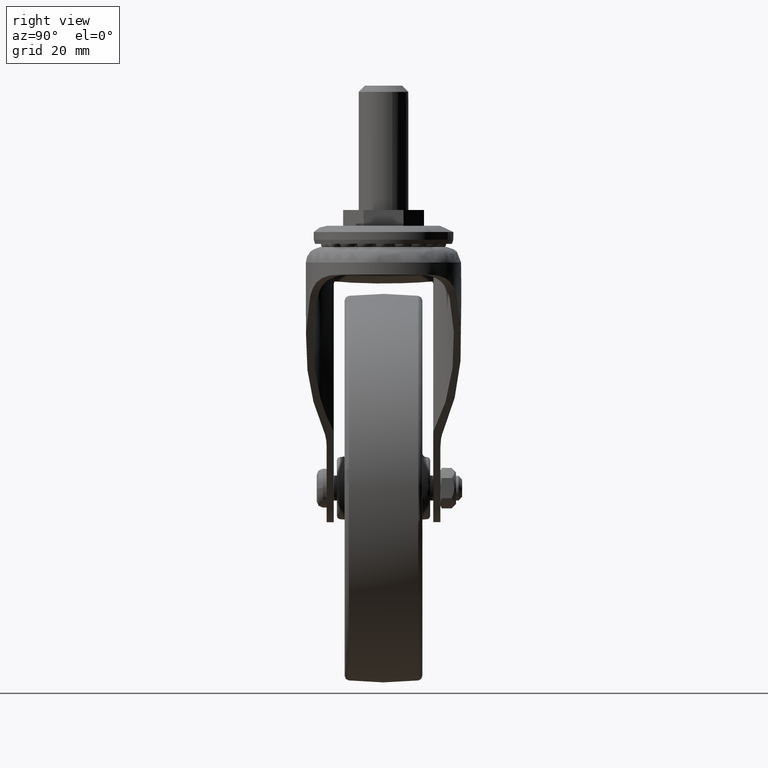
[diagram: clean part render]
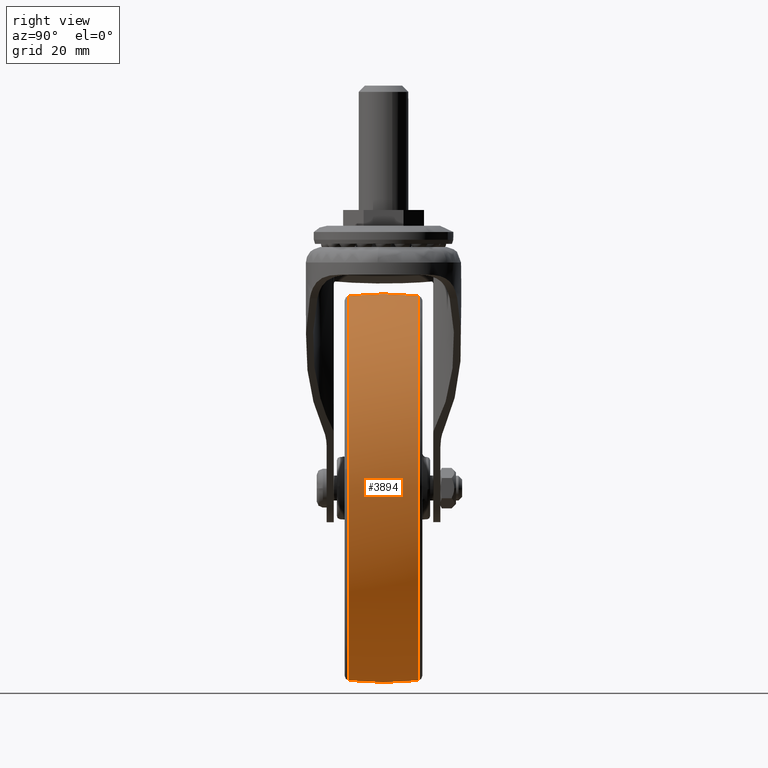
[diagram: same view with one face highlighted and labeled with its STEP entity id]
A machine part, right view. The second image highlights one B-rep face of the part: STEP entity #3894.
In plain terms, the highlighted face is a freeform B-spline surface patch.
Its self-contained STEP definition (entity closure, byte-faithful):
#2863=CARTESIAN_POINT('',(16.859412540729789,-11.167512254806500,-59.533276336664599));
#2864=VERTEX_POINT('',#2863);
#2878=CARTESIAN_POINT('',(61.562073801667132,-11.167497079689721,6.209828615817592));
#2879=VERTEX_POINT('',#2878);
#2880=CARTESIAN_POINT('',(16.859412540729789,-11.167512254806509,-59.533276336664606));
#2881=CARTESIAN_POINT('',(61.874476883661288,-11.167509386006888,-46.785321644097181));
#2882=CARTESIAN_POINT('',(61.874476883661302,-11.167498528446149,0.000001613669779));
#2883=CARTESIAN_POINT('',(61.874476883661302,-11.167497806059195,3.112773279797085));
#2884=CARTESIAN_POINT('',(61.562073801667118,-11.167497079689724,6.209828615817592));
#2892=(BOUNDED_CURVE()B_SPLINE_CURVE(2,(#2880,#2881,#2882,#2883,#2884),.UNSPECIFIED.,.F.,.U.)B_SPLINE_CURVE_WITH_KNOTS((3,2,3),(0.046426116413220,0.250000000000000,0.267423436226766),.UNSPECIFIED.)CURVE()GEOMETRIC_REPRESENTATION_ITEM()RATIONAL_B_SPLINE_CURVE((0.911418360728230,0.761498359879652,1.0,0.979587174723006,0.962019641921388))REPRESENTATION_ITEM(''));
#2893=EDGE_CURVE('',#2864,#2879,#2892,.T.);
#2992=CARTESIAN_POINT('',(0.0,-11.167484169115880,61.874480111000857));
#2993=VERTEX_POINT('',#2992);
#2994=CARTESIAN_POINT('',(61.562073801667125,-11.167497079689726,6.209828615817592));
#2995=CARTESIAN_POINT('',(55.947125964351045,-11.167484169115875,61.874480111000857));
#2996=CARTESIAN_POINT('',(0.0,-11.167484169115880,61.874480111000857));
#3004=(BOUNDED_CURVE()B_SPLINE_CURVE(2,(#2994,#2995,#2996),.UNSPECIFIED.,.F.,.U.)B_SPLINE_CURVE_WITH_KNOTS((3,3),(0.267423436226766,0.500000000000000),.UNSPECIFIED.)CURVE()GEOMETRIC_REPRESENTATION_ITEM()RATIONAL_B_SPLINE_CURVE((0.962019641921387,0.727519606463541,1.0))REPRESENTATION_ITEM(''));
#3005=EDGE_CURVE('',#2879,#2993,#3004,.T.);
#3007=CARTESIAN_POINT('',(-61.460645238487857,-11.167500525878991,7.144238826185015));
#3008=VERTEX_POINT('',#3007);
#3022=CARTESIAN_POINT('',(0.0,-11.167512887776420,-61.874476883661302));
#3023=VERTEX_POINT('',#3022);
#3024=CARTESIAN_POINT('',(-61.460645238487849,-11.167500525878992,7.144238826185015));
#3025=CARTESIAN_POINT('',(-61.874478227965348,-11.167500844705600,3.584105215042377));
#3026=CARTESIAN_POINT('',(-61.874478187999912,-11.167501202739651,0.000000151617456));
#3027=CARTESIAN_POINT('',(-61.874477498053423,-11.167507383688367,-61.874476812243827));
#3028=CARTESIAN_POINT('',(0.0,-11.167512887776420,-61.874476883661302));
#3036=(BOUNDED_CURVE()B_SPLINE_CURVE(2,(#3024,#3025,#3026,#3027,#3028),.UNSPECIFIED.,.F.,.U.)B_SPLINE_CURVE_WITH_KNOTS((3,2,3),(0.730000137950048,0.750000000000000,1.0),.UNSPECIFIED.)CURVE()GEOMETRIC_REPRESENTATION_ITEM()RATIONAL_B_SPLINE_CURVE((0.956886389709976,0.976568704113458,1.0,0.707106781186548,1.0))REPRESENTATION_ITEM(''));
#3037=EDGE_CURVE('',#3008,#3023,#3036,.T.);
#3039=CARTESIAN_POINT('',(0.0,-11.167512887776420,-61.874476883661302));
#3040=CARTESIAN_POINT('',(8.592262934260161,-11.167512887776418,-61.874476883661309));
#3041=CARTESIAN_POINT('',(16.859412540729789,-11.167512254806509,-59.533276336664606));
#3049=(BOUNDED_CURVE()B_SPLINE_CURVE(2,(#3039,#3040,#3041),.UNSPECIFIED.,.F.,.U.)B_SPLINE_CURVE_WITH_KNOTS((3,3),(0.0,0.046426116413220),.UNSPECIFIED.)CURVE()GEOMETRIC_REPRESENTATION_ITEM()RATIONAL_B_SPLINE_CURVE((1.0,0.945608421306896,0.911418360728230))REPRESENTATION_ITEM(''));
#3050=EDGE_CURVE('',#3023,#2864,#3049,.T.);
#3085=CARTESIAN_POINT('',(60.979178450908996,11.167510254334079,-10.487635164903971));
#3086=VERTEX_POINT('',#3085);
#3087=CARTESIAN_POINT('',(0.0,11.167508562899661,61.874476493552521));
#3088=VERTEX_POINT('',#3087);
#3089=CARTESIAN_POINT('',(60.979178450909004,11.167510254334085,-10.487635164903967));
#3090=CARTESIAN_POINT('',(61.874475294835513,11.167510120700552,-5.282031636926890));
#3091=CARTESIAN_POINT('',(61.874475294835499,11.167509998175500,0.000000599358513));
#3092=CARTESIAN_POINT('',(61.874475294835506,11.167508562899664,61.874476493552514));
#3093=CARTESIAN_POINT('',(0.0,11.167508562899661,61.874476493552521));
#3101=(BOUNDED_CURVE()B_SPLINE_CURVE(2,(#3089,#3090,#3091,#3092,#3093),.UNSPECIFIED.,.F.,.U.)B_SPLINE_CURVE_WITH_KNOTS((3,2,3),(0.220849025038311,0.250000000000000,0.500000000000000),.UNSPECIFIED.)CURVE()GEOMETRIC_REPRESENTATION_ITEM()RATIONAL_B_SPLINE_CURVE((0.939659644304331,0.965847508447682,1.0,0.707106781186548,1.0))REPRESENTATION_ITEM(''));
#3102=EDGE_CURVE('',#3086,#3088,#3101,.T.);
#3151=CARTESIAN_POINT('',(-61.479177486551421,11.167524272468970,6.982929484320373));
#3152=VERTEX_POINT('',#3151);
#3166=CARTESIAN_POINT('',(-61.460641722616238,11.167524335401341,7.144238311373103));
#3167=VERTEX_POINT('',#3166);
#3168=CARTESIAN_POINT('',(-61.460641722616238,11.167524335401342,7.144238311373103));
#3169=CARTESIAN_POINT('',(-61.470015645550333,11.167524327863955,7.063596082889473));
#3170=CARTESIAN_POINT('',(-61.479177486551428,11.167524272468970,6.982929484320373));
#3178=(BOUNDED_CURVE()B_SPLINE_CURVE(2,(#3168,#3169,#3170),.UNSPECIFIED.,.F.,.U.)B_SPLINE_CURVE_WITH_KNOTS((3,3),(0.730000138238234,0.730444236552219),.UNSPECIFIED.)CURVE()GEOMETRIC_REPRESENTATION_ITEM()RATIONAL_B_SPLINE_CURVE((0.956886390277197,0.957323437425026,0.957762333064721))REPRESENTATION_ITEM(''));
#3179=EDGE_CURVE('',#3167,#3152,#3178,.T.);
#3220=CARTESIAN_POINT('',(0.0,11.167511433451340,-61.874475294835499));
#3221=VERTEX_POINT('',#3220);
#3222=CARTESIAN_POINT('',(0.0,11.167511433451340,-61.874475294835499));
#3223=CARTESIAN_POINT('',(52.141301780942385,11.167511433451340,-61.874475294835484));
#3224=CARTESIAN_POINT('',(60.979178450909004,11.167510254334085,-10.487635164903967));
#3232=(BOUNDED_CURVE()B_SPLINE_CURVE(2,(#3222,#3223,#3224),.UNSPECIFIED.,.F.,.U.)B_SPLINE_CURVE_WITH_KNOTS((3,3),(0.0,0.220849025038311),.UNSPECIFIED.)CURVE()GEOMETRIC_REPRESENTATION_ITEM()RATIONAL_B_SPLINE_CURVE((1.0,0.741259272738865,0.939659644304331))REPRESENTATION_ITEM(''));
#3233=EDGE_CURVE('',#3221,#3086,#3232,.T.);
#3235=CARTESIAN_POINT('',(-61.479177486551421,11.167524272468967,6.982929484320373));
#3236=CARTESIAN_POINT('',(-61.874474739959460,11.167523994154148,3.502653417896604));
#3237=CARTESIAN_POINT('',(-61.874474756091637,11.167523628970770,-0.000000062624058));
#3238=CARTESIAN_POINT('',(-61.874475041067043,11.167517177995768,-61.874475324333758));
#3239=CARTESIAN_POINT('',(0.0,11.167511433451340,-61.874475294835499));
#3247=(BOUNDED_CURVE()B_SPLINE_CURVE(2,(#3235,#3236,#3237,#3238,#3239),.UNSPECIFIED.,.F.,.U.)B_SPLINE_CURVE_WITH_KNOTS((3,2,3),(0.730444236552219,0.750000000000000,1.0),.UNSPECIFIED.)CURVE()GEOMETRIC_REPRESENTATION_ITEM()RATIONAL_B_SPLINE_CURVE((0.957762333064719,0.977088997989699,1.0,0.707106781186548,1.0))REPRESENTATION_ITEM(''));
#3248=EDGE_CURVE('',#3152,#3221,#3247,.T.);
#3801=CARTESIAN_POINT('',(-61.328220287195165,-12.295962952238243,7.128894792006973));
#3802=CARTESIAN_POINT('',(-62.081977602067745,-6.171396763216775,7.216512801648682));
#3803=CARTESIAN_POINT('',(-62.081977602067745,0.0,7.216512801648682));
#3804=CARTESIAN_POINT('',(-62.081977602067745,6.171403680964750,7.216512801648682));
#3805=CARTESIAN_POINT('',(-61.328218603776563,12.295976630649973,7.128894596323582));
#3806=CARTESIAN_POINT('',(-61.741167340359226,-12.295962952238240,3.576407543662565));
#3807=CARTESIAN_POINT('',(-62.500000000000000,-6.171396763216771,3.620363545228846));
#3808=CARTESIAN_POINT('',(-62.499999999999993,0.0,3.620363545228846));
#3809=CARTESIAN_POINT('',(-62.500000000000000,6.171403680964750,3.620363545228846));
#3810=CARTESIAN_POINT('',(-61.741165645605506,12.295976630649969,3.576407445492572));
#3811=CARTESIAN_POINT('',(-61.741167340359240,-12.295962952238238,0.0));
#3812=CARTESIAN_POINT('',(-62.500000000000000,-6.171396763216773,0.0));
#3813=CARTESIAN_POINT('',(-62.500000000000000,0.0,0.0));
#3814=CARTESIAN_POINT('',(-62.500000000000014,6.171403680964750,0.0));
#3815=CARTESIAN_POINT('',(-61.741165645605506,12.295976630649978,0.0));
#3816=CARTESIAN_POINT('',(-61.741167340359233,-12.295962952238241,-61.741167340359233));
#3817=CARTESIAN_POINT('',(-62.500000000000007,-6.171396763216773,-62.500000000000007));
#3818=CARTESIAN_POINT('',(-62.500000000000000,0.0,-62.500000000000000));
#3819=CARTESIAN_POINT('',(-62.500000000000000,6.171403680964750,-62.500000000000000));
#3820=CARTESIAN_POINT('',(-61.741165645605513,12.295976630649974,-61.741165645605513));
#3821=CARTESIAN_POINT('',(0.0,-12.295962952238238,-61.741167340359240));
#3822=CARTESIAN_POINT('',(0.0,-6.171396763216773,-62.500000000000000));
#3823=CARTESIAN_POINT('',(0.0,0.0,-62.500000000000000));
#3824=CARTESIAN_POINT('',(0.0,6.171403680964750,-62.500000000000014));
#3825=CARTESIAN_POINT('',(0.0,12.295976630649978,-61.741165645605506));
#3826=CARTESIAN_POINT('',(61.741167340359233,-12.295962952238241,-61.741167340359233));
#3827=CARTESIAN_POINT('',(62.500000000000007,-6.171396763216773,-62.500000000000007));
#3828=CARTESIAN_POINT('',(62.500000000000000,0.0,-62.500000000000000));
#3829=CARTESIAN_POINT('',(62.500000000000000,6.171403680964750,-62.500000000000000));
#3830=CARTESIAN_POINT('',(61.741165645605513,12.295976630649974,-61.741165645605513));
#3831=CARTESIAN_POINT('',(61.741167340359240,-12.295962952238238,0.0));
#3832=CARTESIAN_POINT('',(62.500000000000000,-6.171396763216773,0.0));
#3833=CARTESIAN_POINT('',(62.500000000000000,0.0,0.0));
#3834=CARTESIAN_POINT('',(62.500000000000014,6.171403680964750,0.0));
#3835=CARTESIAN_POINT('',(61.741165645605506,12.295976630649978,0.0));
#3836=CARTESIAN_POINT('',(61.741167340359233,-12.295962952238241,61.741167340359233));
#3837=CARTESIAN_POINT('',(62.500000000000007,-6.171396763216773,62.500000000000007));
#3838=CARTESIAN_POINT('',(62.500000000000000,0.0,62.500000000000000));
#3839=CARTESIAN_POINT('',(62.500000000000000,6.171403680964750,62.500000000000000));
#3840=CARTESIAN_POINT('',(61.741165645605513,12.295976630649974,61.741165645605513));
#3841=CARTESIAN_POINT('',(0.0,-12.295962952238238,61.741167340359240));
#3842=CARTESIAN_POINT('',(0.0,-6.171396763216773,62.500000000000000));
#3843=CARTESIAN_POINT('',(0.0,0.0,62.500000000000000));
#3844=CARTESIAN_POINT('',(0.0,6.171403680964750,62.500000000000014));
#3845=CARTESIAN_POINT('',(0.0,12.295976630649978,61.741165645605506));
#3853=(BOUNDED_SURFACE()B_SPLINE_SURFACE(2,2,((#3801,#3806,#3811,#3816,#3821,#3826,#3831,#3836,#3841),(#3802,#3807,#3812,#3817,#3822,#3827,#3832,#3837,#3842),(#3803,#3808,#3813,#3818,#3823,#3828,#3833,#3838,#3843),(#3804,#3809,#3814,#3819,#3824,#3829,#3834,#3839,#3844),(#3805,#3810,#3815,#3820,#3825,#3830,#3835,#3840,#3845)),.UNSPECIFIED.,.F.,.F.,.U.)B_SPLINE_SURFACE_WITH_KNOTS((3,2,3),(3,2,2,2,3),(0.0,12.527873769515260,25.055761322032509),(0.0,8.284269519228245,111.837660112501990,215.391050705775800,318.944441299049570),.UNSPECIFIED.)GEOMETRIC_REPRESENTATION_ITEM()RATIONAL_B_SPLINE_SURFACE(((0.925297862695052,0.944330537078366,0.966988481872442,0.683764112861289,0.966988481872442,0.683764112861289,0.966988481872442,0.683764112861289,0.966988481872442),(0.939172677218255,0.958490746000060,0.981488446016934,0.694017135834821,0.981488446016934,0.694017135834821,0.981488446016934,0.694017135834821,0.981488446016934),(0.956886126402807,0.976568547383107,1.0,0.707106781186548,1.0,0.707106781186548,1.0,0.707106781186548,1.0),(0.939172657730151,0.958490726111100,0.981488425650765,0.694017121433765,0.981488425650765,0.694017121433765,0.981488425650765,0.694017121433765,0.981488425650765),(0.925297832165280,0.944330505920620,0.966988449967107,0.683764090300810,0.966988449967107,0.683764090300810,0.966988449967107,0.683764090300810,0.966988449967107)))REPRESENTATION_ITEM('')SURFACE());
#3854=ORIENTED_EDGE('',*,*,#3037,.F.);
#3855=CARTESIAN_POINT('',(-61.460645238487857,-11.167500525878987,7.144238826185015));
#3856=CARTESIAN_POINT('',(-62.081983039215991,-5.601268863964563,7.216464159344802));
#3857=CARTESIAN_POINT('',(-62.081982826740244,-0.000000048614964,7.216464108032795));
#3858=CARTESIAN_POINT('',(-62.081982614264049,5.601280833091478,7.216464056720678));
#3859=CARTESIAN_POINT('',(-61.460641722616238,11.167524335401342,7.144238311373103));
#3867=(BOUNDED_CURVE()B_SPLINE_CURVE(2,(#3855,#3856,#3857,#3858,#3859),.UNSPECIFIED.,.F.,.U.)B_SPLINE_CURVE_WITH_KNOTS((3,2,3),(0.450743909003682,0.500000000000000,0.549256195318871),.UNSPECIFIED.)CURVE()GEOMETRIC_REPRESENTATION_ITEM()RATIONAL_B_SPLINE_CURVE((0.927849951587709,0.940781537505847,0.956886118190660,0.940781503396949,0.927849896810495))REPRESENTATION_ITEM(''));
#3868=EDGE_CURVE('',#3008,#3167,#3867,.T.);
#3869=ORIENTED_EDGE('',*,*,#3868,.T.);
#3870=ORIENTED_EDGE('',*,*,#3179,.T.);
#3871=ORIENTED_EDGE('',*,*,#3248,.T.);
#3872=ORIENTED_EDGE('',*,*,#3233,.T.);
#3873=ORIENTED_EDGE('',*,*,#3102,.T.);
#3874=CARTESIAN_POINT('',(0.0,-11.167484169115879,61.874480111000864));
#3875=CARTESIAN_POINT('',(0.0,-5.601260584052013,62.500000000000007));
#3876=CARTESIAN_POINT('',(0.0,0.0,62.500000000000000));
#3877=CARTESIAN_POINT('',(0.0,5.601272945300132,62.500000000000000));
#3878=CARTESIAN_POINT('',(0.0,11.167508562899663,61.874476493552521));
#3886=(BOUNDED_CURVE()B_SPLINE_CURVE(2,(#3874,#3875,#3876,#3877,#3878),.UNSPECIFIED.,.F.,.U.)B_SPLINE_CURVE_WITH_KNOTS((3,2,3),(0.450743980380160,0.500000000000000,0.549256126491951),.UNSPECIFIED.)CURVE()GEOMETRIC_REPRESENTATION_ITEM()RATIONAL_B_SPLINE_CURVE((0.969655606270263,0.983169828633017,1.0,0.983169792116141,0.969655547625935))REPRESENTATION_ITEM(''));
#3887=EDGE_CURVE('',#2993,#3088,#3886,.T.);
#3888=ORIENTED_EDGE('',*,*,#3887,.F.);
#3889=ORIENTED_EDGE('',*,*,#3005,.F.);
#3890=ORIENTED_EDGE('',*,*,#2893,.F.);
#3891=ORIENTED_EDGE('',*,*,#3050,.F.);
#3892=EDGE_LOOP('',(#3854,#3869,#3870,#3871,#3872,#3873,#3888,#3889,#3890,#3891));
#3893=FACE_OUTER_BOUND('',#3892,.T.);
#3894=ADVANCED_FACE('',(#3893),#3853,.T.);